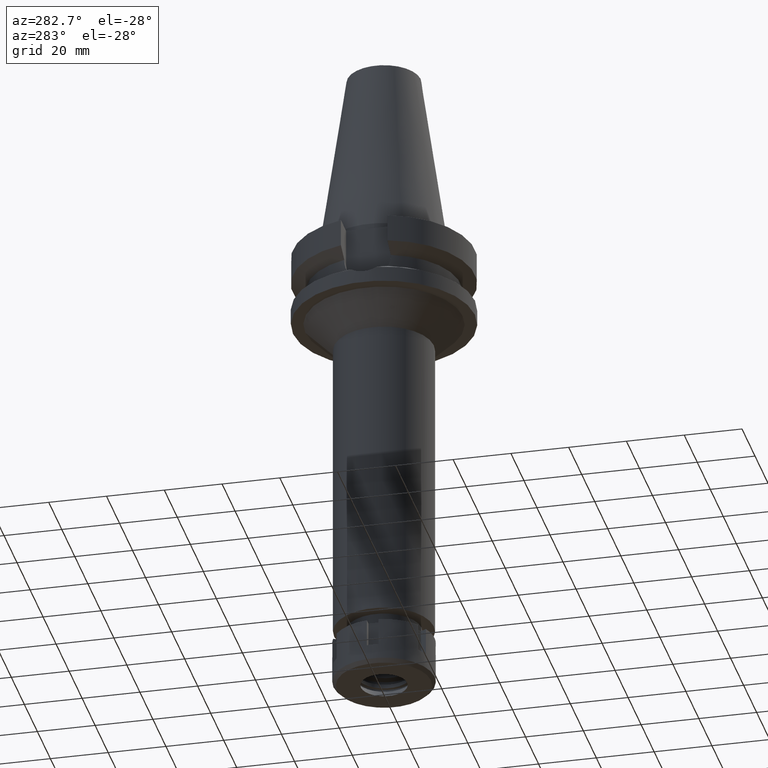
[diagram: clean part render]
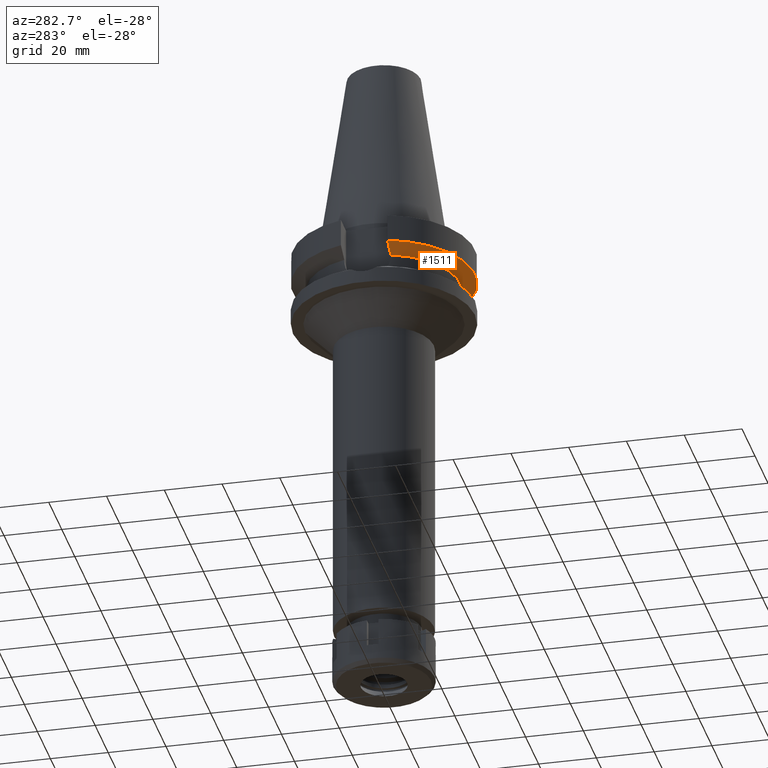
[diagram: same view with one face highlighted and labeled with its STEP entity id]
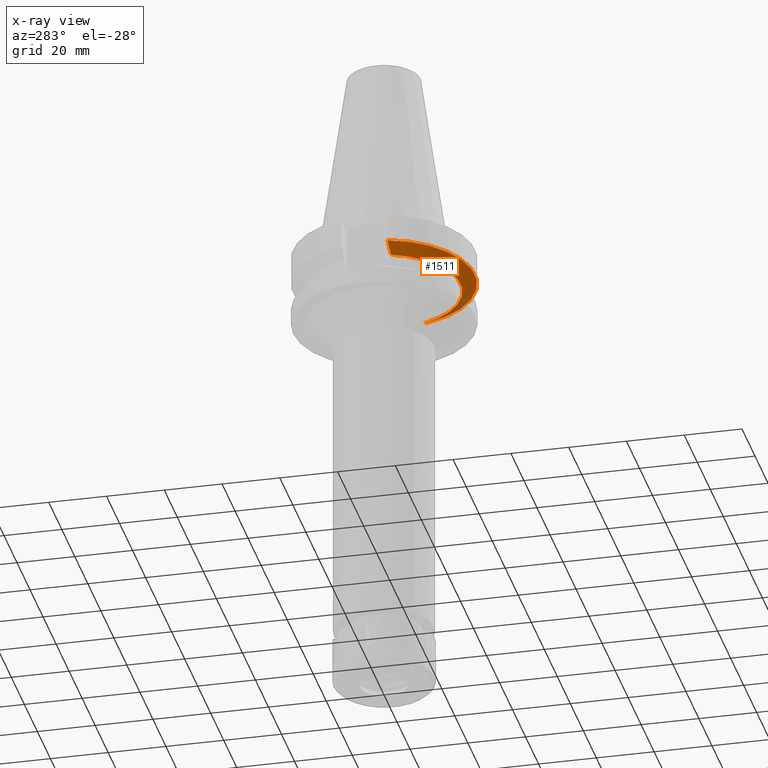
[diagram: x-ray of the same camera — body ghosted, the highlighted face saturated]
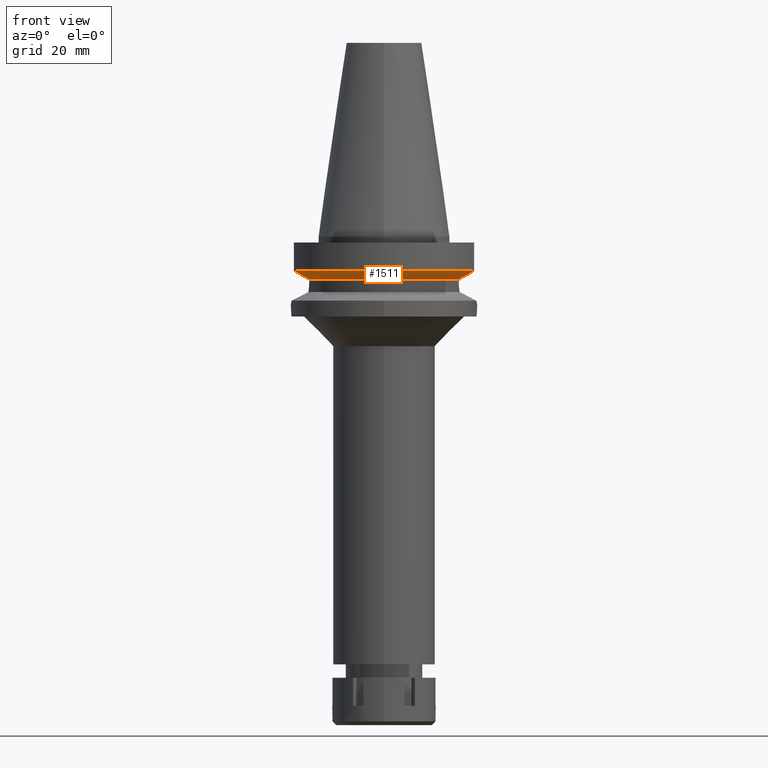
[diagram: same view with one face highlighted and labeled with its STEP entity id]
A machine part, auxiliary view. The second image highlights one B-rep face of the part: STEP entity #1511.
The next image is the same camera in x-ray: the body ghosted, the highlighted face saturated — about 9% of this face is hidden behind the body in this view.
A second angle (front view) of the same face is appended — the face is thin or edge-on in the first view.
In plain terms, the highlighted conical surface has half-angle 60 deg.
Its self-contained STEP definition (entity closure, byte-faithful):
#108 = DIRECTION ( 'NONE',  ( 0.0000000000000000000, 0.0000000000000000000, 1.000000000000000000 ) ) ;
#240 = CARTESIAN_POINT ( 'NONE',  ( -28.57292329137948528, -8.049998557331793592, -12.61549605472040270 ) ) ;
#271 = DIRECTION ( 'NONE',  ( 0.0000000000000000000, 1.000000000000000000, 0.0000000000000000000 ) ) ;
#350 = CARTESIAN_POINT ( 'NONE',  ( 30.45402272279000044, -8.049999999999000622, -11.56550565266999975 ) ) ;
#572 = ORIENTED_EDGE ( 'NONE', *, *, #2054, .F. ) ;
#725 = ORIENTED_EDGE ( 'NONE', *, *, #992, .T. ) ;
#784 = EDGE_LOOP ( 'NONE', ( #2309, #2820, #725, #572 ) ) ;
#806 = CARTESIAN_POINT ( 'NONE',  ( -26.83754616083559341, -8.049990821977567990, -13.57774888054535722 ) ) ;
#824 = FACE_OUTER_BOUND ( 'NONE', #784, .T. ) ;
#839 = CARTESIAN_POINT ( 'NONE',  ( 25.24772266958000344, -8.050000000000000711, -14.45225699861000024 ) ) ;
#872 = CARTESIAN_POINT ( 'NONE',  ( 0.0000000000000000000, 1.065333950388000029E-14, -14.45225699861000024 ) ) ;
#923 = AXIS2_PLACEMENT_3D ( 'NONE', #872, #1472, #1747 ) ;
#992 = EDGE_CURVE ( 'NONE', #1387, #1579, #1121, .T. ) ;
#1094 = B_SPLINE_CURVE_WITH_KNOTS ( 'NONE', 3,
 ( #2506, #240, #806, #3622 ),
 .UNSPECIFIED., .F., .F.,
 ( 4, 4 ),
 ( 0.0000000000000000000, 1.000000000000000000 ),
 .UNSPECIFIED. ) ;
#1121 = B_SPLINE_CURVE_WITH_KNOTS ( 'NONE', 3,
 ( #2645, #1524, #1539, #3477 ),
 .UNSPECIFIED., .F., .F.,
 ( 4, 4 ),
 ( 0.0000000000000000000, 1.000000000000000000 ),
 .UNSPECIFIED. ) ;
#1233 = DIRECTION ( 'NONE',  ( 0.0000000000000000000, -1.000000000000000000, 0.0000000000000000000 ) ) ;
#1387 = VERTEX_POINT ( 'NONE', #839 ) ;
#1468 = EDGE_CURVE ( 'NONE', #1630, #1909, #1094, .T. ) ;
#1472 = DIRECTION ( 'NONE',  ( 0.0000000000000000000, 0.0000000000000000000, -1.000000000000000000 ) ) ;
#1511 = ADVANCED_FACE ( 'NONE', ( #824 ), #2186, .T. ) ;
#1524 = CARTESIAN_POINT ( 'NONE',  ( 26.83757730459284119, -8.050003177712282465, -13.57772965054501491 ) ) ;
#1539 = CARTESIAN_POINT ( 'NONE',  ( 28.57294951894145285, -8.050008280307146435, -12.61547990224312521 ) ) ;
#1579 = VERTEX_POINT ( 'NONE', #350 ) ;
#1630 = VERTEX_POINT ( 'NONE', #2096 ) ;
#1684 = DIRECTION ( 'NONE',  ( 0.0000000000000000000, 0.0000000000000000000, 1.000000000000000000 ) ) ;
#1747 = DIRECTION ( 'NONE',  ( 0.9527442516822307583, -0.3037735849057093818, 0.0000000000000000000 ) ) ;
#1909 = VERTEX_POINT ( 'NONE', #3218 ) ;
#2011 = AXIS2_PLACEMENT_3D ( 'NONE', #3410, #108, #1233 ) ;
#2054 = EDGE_CURVE ( 'NONE', #1630, #1579, #2821, .T. ) ;
#2096 = CARTESIAN_POINT ( 'NONE',  ( -30.45402291358000113, -8.049999278195999253, -11.56551215380000031 ) ) ;
#2186 = CONICAL_SURFACE ( 'NONE', #2761, 29.00000000000000000, 1.047197551196400456 ) ;
#2309 = ORIENTED_EDGE ( 'NONE', *, *, #1468, .T. ) ;
#2506 = CARTESIAN_POINT ( 'NONE',  ( -30.45402291358000113, -8.049999278195999253, -11.56551215380000031 ) ) ;
#2645 = CARTESIAN_POINT ( 'NONE',  ( 25.24772266958000344, -8.050000000000000711, -14.45225699861000024 ) ) ;
#2761 = AXIS2_PLACEMENT_3D ( 'NONE', #3072, #1684, #271 ) ;
#2820 = ORIENTED_EDGE ( 'NONE', *, *, #3373, .F. ) ;
#2821 = CIRCLE ( 'NONE', #2011, 31.50000000000000000 ) ;
#3072 = CARTESIAN_POINT ( 'NONE',  ( 0.0000000000000000000, 1.065333950388000029E-14, -13.00888132564000088 ) ) ;
#3218 = CARTESIAN_POINT ( 'NONE',  ( -25.24772413111999825, -8.049995416064998466, -14.45229202584999939 ) ) ;
#3344 = CIRCLE ( 'NONE', #923, 26.50000000000000711 ) ;
#3373 = EDGE_CURVE ( 'NONE', #1387, #1909, #3344, .T. ) ;
#3410 = CARTESIAN_POINT ( 'NONE',  ( 0.0000000000000000000, 1.065333950388000029E-14, -11.56550565266999975 ) ) ;
#3477 = CARTESIAN_POINT ( 'NONE',  ( 30.45402272279000044, -8.049999999999000622, -11.56550565266999975 ) ) ;
#3622 = CARTESIAN_POINT ( 'NONE',  ( -25.24772413111999825, -8.049995416064998466, -14.45229202584999939 ) ) ;